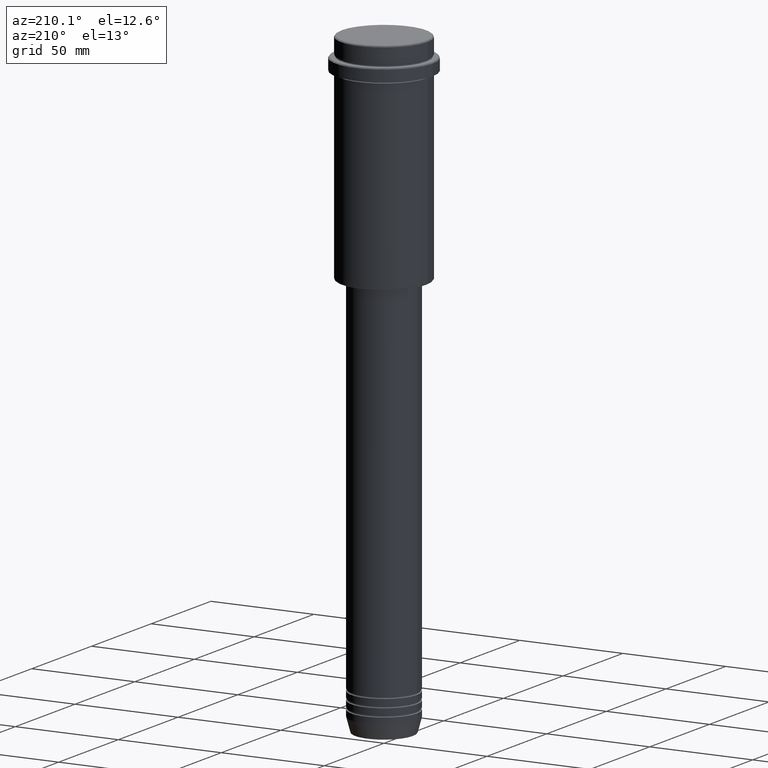
[diagram: clean part render]
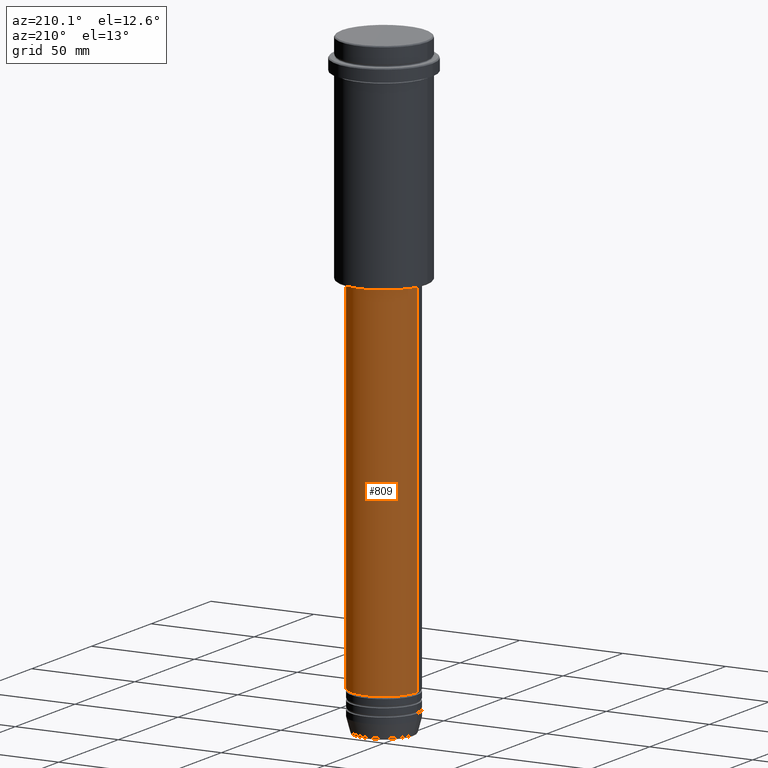
[diagram: same view with one face highlighted and labeled with its STEP entity id]
A machine part, auxiliary view. The second image highlights one B-rep face of the part: STEP entity #809.
In plain terms, the highlighted cylindrical surface (partial cylindrical patch) has radius 16 mm, axis along (-0, -0, 1).
Its self-contained STEP definition (entity closure, byte-faithful):
#85 = CYLINDRICAL_SURFACE ( 'NONE', #582, 16.00000000000000000 ) ;
#87 = VERTEX_POINT ( 'NONE', #1331 ) ;
#90 = DIRECTION ( 'NONE',  ( -0.000000000000000000, -0.000000000000000000, 1.000000000000000000 ) ) ;
#123 = VECTOR ( 'NONE', #174, 1000.000000000000000 ) ;
#164 = CARTESIAN_POINT ( 'NONE',  ( -16.00000000000000000, 1.959434878635765131E-15, -280.9999999999999432 ) ) ;
#174 = DIRECTION ( 'NONE',  ( -0.000000000000000000, -0.000000000000000000, 1.000000000000000000 ) ) ;
#195 = CARTESIAN_POINT ( 'NONE',  ( 16.00000000000000000, 0.000000000000000000, 0.000000000000000000 ) ) ;
#237 = EDGE_CURVE ( 'NONE', #87, #929, #386, .T. ) ;
#293 = EDGE_CURVE ( 'NONE', #533, #1221, #1243, .T. ) ;
#386 = LINE ( 'NONE', #195, #1308 ) ;
#407 = DIRECTION ( 'NONE',  ( 1.000000000000000000, 0.000000000000000000, 0.000000000000000000 ) ) ;
#518 = EDGE_CURVE ( 'NONE', #929, #1221, #1215, .T. ) ;
#533 = VERTEX_POINT ( 'NONE', #164 ) ;
#582 = AXIS2_PLACEMENT_3D ( 'NONE', #943, #1394, #407 ) ;
#588 = ORIENTED_EDGE ( 'NONE', *, *, #237, .F. ) ;
#625 = AXIS2_PLACEMENT_3D ( 'NONE', #764, #1398, #1368 ) ;
#649 = EDGE_LOOP ( 'NONE', ( #911, #843, #897, #588 ) ) ;
#757 = CARTESIAN_POINT ( 'NONE',  ( 16.00000000000000355, 0.000000000000000000, -105.9999999999999289 ) ) ;
#764 = CARTESIAN_POINT ( 'NONE',  ( 0.000000000000000000, 0.000000000000000000, -105.9999999999999289 ) ) ;
#809 = ADVANCED_FACE ( 'NONE', ( #1057 ), #85, .T. ) ;
#832 = CARTESIAN_POINT ( 'NONE',  ( 0.000000000000000000, 0.000000000000000000, -280.9999999999999432 ) ) ;
#843 = ORIENTED_EDGE ( 'NONE', *, *, #293, .T. ) ;
#849 = DIRECTION ( 'NONE',  ( 1.000000000000000000, 0.000000000000000000, 0.000000000000000000 ) ) ;
#897 = ORIENTED_EDGE ( 'NONE', *, *, #518, .F. ) ;
#911 = ORIENTED_EDGE ( 'NONE', *, *, #1143, .T. ) ;
#929 = VERTEX_POINT ( 'NONE', #757 ) ;
#934 = AXIS2_PLACEMENT_3D ( 'NONE', #832, #90, #849 ) ;
#943 = CARTESIAN_POINT ( 'NONE',  ( 0.000000000000000000, 0.000000000000000000, 0.000000000000000000 ) ) ;
#1057 = FACE_OUTER_BOUND ( 'NONE', #649, .T. ) ;
#1060 = CARTESIAN_POINT ( 'NONE',  ( -16.00000000000000355, 1.959434878635765526E-15, -105.9999999999999289 ) ) ;
#1066 = DIRECTION ( 'NONE',  ( -0.000000000000000000, -0.000000000000000000, 1.000000000000000000 ) ) ;
#1100 = CIRCLE ( 'NONE', #934, 16.00000000000000000 ) ;
#1133 = CARTESIAN_POINT ( 'NONE',  ( -16.00000000000000000, 1.959434878635765131E-15, 0.000000000000000000 ) ) ;
#1143 = EDGE_CURVE ( 'NONE', #87, #533, #1100, .T. ) ;
#1215 = CIRCLE ( 'NONE', #625, 16.00000000000000355 ) ;
#1221 = VERTEX_POINT ( 'NONE', #1060 ) ;
#1243 = LINE ( 'NONE', #1133, #123 ) ;
#1308 = VECTOR ( 'NONE', #1066, 1000.000000000000000 ) ;
#1331 = CARTESIAN_POINT ( 'NONE',  ( 16.00000000000000000, 0.000000000000000000, -280.9999999999999432 ) ) ;
#1368 = DIRECTION ( 'NONE',  ( 1.000000000000000000, 0.000000000000000000, 0.000000000000000000 ) ) ;
#1394 = DIRECTION ( 'NONE',  ( -0.000000000000000000, -0.000000000000000000, 1.000000000000000000 ) ) ;
#1398 = DIRECTION ( 'NONE',  ( -0.000000000000000000, -0.000000000000000000, 1.000000000000000000 ) ) ;